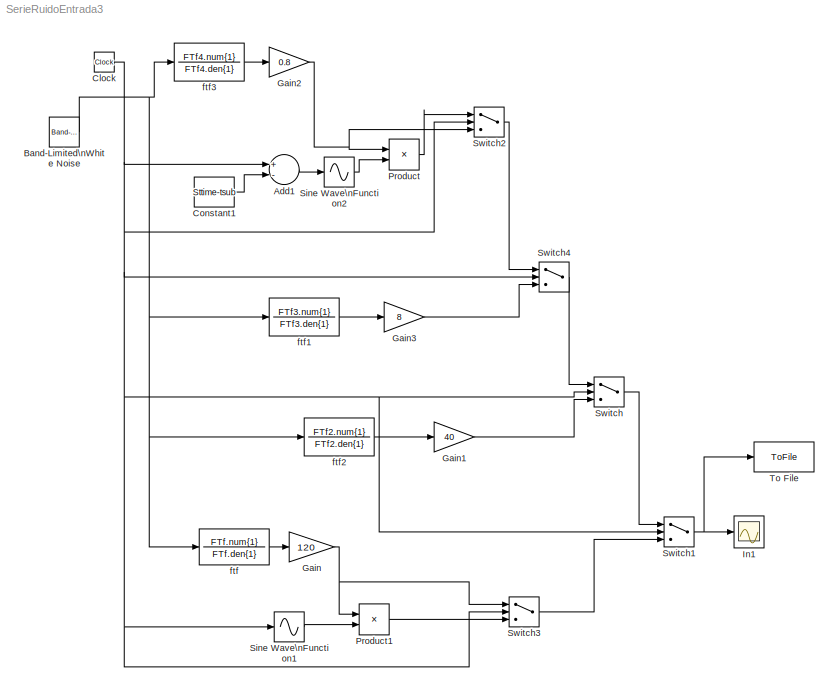
MODEL SerieRuidoEntrada3
KIND model
BLOCK [Sum] Add1
  InputSameDT = off
  Inputs = +-
  OutDataType = sfix(16)
  OutDataTypeMode = Inherit via internal rule
  OutDataTypeStr = Inherit: Inherit via internal rule
  OutScaling = 2^-10
  Ports = [2, 1]
  SaturateOnIntegerOverflow = off
BLOCK [Reference] Band-Limited\nWhite Noise  REF=simulink/Sources/Band-Limited\nWhite Noise
  Cov = [3.163*10^-5]
  FunctionWithSeparateData = off
  Ports = [0, 1]
  RTWMemSecDataConstants = Inherit from model
  RTWMemSecDataInternal = Inherit from model
  RTWMemSecDataParameters = Inherit from model
  RTWMemSecFuncExecute = Inherit from model
  RTWMemSecFuncInitTerm = Inherit from model
  ShowPortLabels = FromPortIcon
  SourceBlock = simulink/Sources/Band-Limited\nWhite Noise
  SourceType = Band-Limited White Noise.
  SystemSampleTime = -1
  Ts = stime
  VectorParams1D = on
  seed = [23341]
BLOCK [Clock] Clock
  Decimation = 10
BLOCK [Constant] Constant1
  OutDataType = sfix(16)
  OutScaling = 2^0
  Value = Sttime-tsub
BLOCK [Gain] Gain
  Gain = 120
  OutDataType = fixdt(1, 16)
  OutDataTypeMode = Inherit via internal rule
  OutDataTypeStr = Inherit: Inherit via internal rule
  OutScaling = 2^0
  ParamDataTypeStr = Inherit: Inherit via internal rule
  ParameterDataType = fixdt(1, 16)
  ParameterDataTypeMode = Inherit via internal rule
  ParameterScaling = 2^0
  SaturateOnIntegerOverflow = off
BLOCK [Gain] Gain1
  Gain = 40
  OutDataType = fixdt(1, 16)
  OutDataTypeMode = Inherit via internal rule
  OutDataTypeStr = Inherit: Inherit via internal rule
  OutScaling = 2^0
  ParamDataTypeStr = Inherit: Inherit via internal rule
  ParameterDataType = fixdt(1, 16)
  ParameterDataTypeMode = Inherit via internal rule
  ParameterScaling = 2^0
  SaturateOnIntegerOverflow = off
BLOCK [Gain] Gain2
  Gain = 0.8
  OutDataType = fixdt(1, 16)
  OutDataTypeMode = Inherit via internal rule
  OutDataTypeStr = Inherit: Inherit via internal rule
  OutScaling = 2^0
  ParamDataTypeStr = Inherit: Inherit via internal rule
  ParameterDataType = fixdt(1, 16)
  ParameterDataTypeMode = Inherit via internal rule
  ParameterScaling = 2^0
  SaturateOnIntegerOverflow = off
BLOCK [Gain] Gain3
  Gain = 8
  OutDataType = fixdt(1, 16)
  OutDataTypeMode = Inherit via internal rule
  OutDataTypeStr = Inherit: Inherit via internal rule
  OutScaling = 2^0
  ParamDataTypeStr = Inherit: Inherit via internal rule
  ParameterDataType = fixdt(1, 16)
  ParameterDataTypeMode = Inherit via internal rule
  ParameterScaling = 2^0
  SaturateOnIntegerOverflow = off
BLOCK [Scope] In1
  DataFormat = StructureWithTime
  Floating = off
  LimitDataPoints = off
  NumInputPorts = 1
  Ports = [1]
  SampleTime = 0
  SaveName = Rand3and
  SaveToWorkspace = on
BLOCK [Product] Product
  InputSameDT = off
  OutDataType = sfix(16)
  OutDataTypeMode = Inherit via internal rule
  OutDataTypeStr = Inherit: Inherit via internal rule
  OutScaling = 2^0
  Ports = [2, 1]
  SaturateOnIntegerOverflow = off
BLOCK [Product] Product1
  InputSameDT = off
  OutDataType = sfix(16)
  OutDataTypeMode = Inherit via internal rule
  OutDataTypeStr = Inherit: Inherit via internal rule
  OutScaling = 2^0
  Ports = [2, 1]
  SaturateOnIntegerOverflow = off
BLOCK [Sin] Sine Wave\nFunction1
  Amplitude = 0.5
  Bias = 0.5
  Frequency = pi/tsub
  Phase = -pi/2
  Ports = [1, 1]
  SampleTime = 0
  TimeSource = Use external signal
BLOCK [Sin] Sine Wave\nFunction2
  Amplitude = 0.5
  Bias = 0.5
  Frequency = pi/tsub
  Phase = pi/2
  Ports = [1, 1]
  SampleTime = 0
  TimeSource = Use external signal
BLOCK [Switch] Switch
  InputSameDT = off
  OutDataType = fixdt(1, 16)
  OutScaling = 2^0
  SaturateOnIntegerOverflow = off
  Threshold = t3
BLOCK [Switch] Switch1
  InputSameDT = off
  OutDataType = fixdt(1, 16)
  OutScaling = 2^0
  SaturateOnIntegerOverflow = off
  Threshold = t2
BLOCK [Switch] Switch2
  InputSameDT = off
  OutDataType = fixdt(1, 16)
  OutScaling = 2^0
  SaturateOnIntegerOverflow = off
  Threshold = Sttime-tsub
BLOCK [Switch] Switch3
  InputSameDT = off
  OutDataType = fixdt(1, 16)
  OutScaling = 2^0
  SaturateOnIntegerOverflow = off
  Threshold = Intime+tsub
BLOCK [Switch] Switch4
  InputSameDT = off
  OutDataType = fixdt(1, 16)
  OutScaling = 2^0
  SaturateOnIntegerOverflow = off
  Threshold = t4
BLOCK [ToFile] To File
  Filename = Ruido.mat
  MatrixName = Ruido
BLOCK [TransferFcn] ftf
  Denominator = FTf.den{1}
  Numerator = FTf.num{1}
BLOCK [TransferFcn] ftf1
  Denominator = FTf3.den{1}
  Numerator = FTf3.num{1}
BLOCK [TransferFcn] ftf2
  Denominator = FTf2.den{1}
  Numerator = FTf2.num{1}
BLOCK [TransferFcn] ftf3
  Denominator = FTf4.den{1}
  Numerator = FTf4.num{1}
LINE Add1:1 -> Sine Wave\nFunction2:1
NET Band-Limited\nWhite Noise:1 -> ftf1:1, ftf2:1, ftf3:1, ftf:1
NET Clock:1 -> Add1:1, Sine Wave\nFunction1:1, Switch1:2, Switch2:2, Switch3:2, Switch4:2, Switch:2
LINE Constant1:1 -> Add1:2
LINE Gain1:1 -> Switch:3
NET Gain2:1 -> Product:1, Switch2:3
LINE Gain3:1 -> Switch4:3
NET Gain:1 -> Product1:1, Switch3:1
LINE Product1:1 -> Switch3:3
LINE Product:1 -> Switch2:1
LINE Sine Wave\nFunction1:1 -> Product1:2
LINE Sine Wave\nFunction2:1 -> Product:2
NET Switch1:1 -> In1:1, To File:1
LINE Switch2:1 -> Switch4:1
LINE Switch3:1 -> Switch1:3
LINE Switch4:1 -> Switch:1
LINE Switch:1 -> Switch1:1
LINE ftf1:1 -> Gain3:1
LINE ftf2:1 -> Gain1:1
LINE ftf3:1 -> Gain2:1
LINE ftf:1 -> Gain:1
note: NET lines group one-source signal fan-out (src -> all destinations, sorted); 1:1 wires keep LINE
